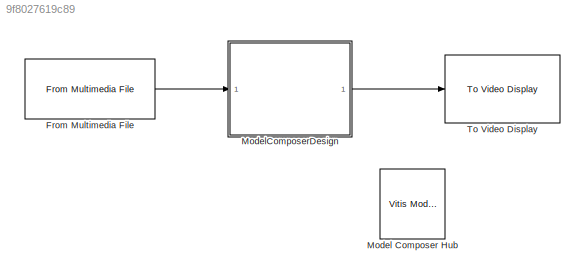
MODEL slx_9f8027619c89
KIND model
CONFIG AbsTol = auto
CONFIG EnableMultiTasking = on
CONFIG FixedStep = auto
CONFIG MaxStep = auto
CONFIG MinStep = auto
CONFIG RelTol = 1e-3
CONFIG SampleTimeConstraint = Unconstrained
CONFIG SolverName = VariableStepAuto
CONFIG StartTime = 0.0
CONFIG StopTime = 0
BLOCK [Reference] From Multimedia File  REF=dspvision/From Multimedia File
  SourceBlock = dspvision/From Multimedia File
  SourceType = From Multimedia File
BLOCK [Reference] Model Composer Hub  REF=vmcUtilities/Vitis Model Composer Hub
  Description = Performs multiplication
  SourceBlock = vmcUtilities/Vitis Model Composer Hub
  SourceType = VMC Hub
  Tag = genX
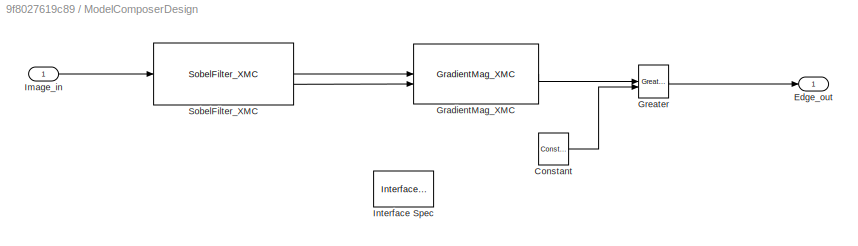
BLOCK [SubSystem] ModelComposerDesign
  ShowPortLabels = none
BLOCK [Reference] ModelComposerDesign/Constant  REF=hlsBasic/Constant
  Description = Performs multiplication
  SourceBlock = hlsBasic/Constant
  SourceType = Constant
BLOCK [Outport] ModelComposerDesign/Edge_out
BLOCK [Reference] ModelComposerDesign/GradientMag_XMC  REF=Sobeledge_lib/GradientMag_XMC
  SourceBlock = Sobeledge_lib/GradientMag_XMC
  SourceType = Import Function
BLOCK [Reference] ModelComposerDesign/Greater  REF=hlsBasic/Greater
  Description = Performs multiplication
  SourceBlock = hlsBasic/Greater
  SourceType = Greater
BLOCK [Inport] ModelComposerDesign/Image_in
BLOCK [Reference] ModelComposerDesign/Interface Spec  REF=hlsUtilities/Interface Spec
  SourceBlock = hlsUtilities/Interface Spec
  SourceType = Interface Specification
BLOCK [Reference] ModelComposerDesign/SobelFilter_XMC  REF=Sobeledge_lib/SobelFilter_XMC
  SourceBlock = Sobeledge_lib/SobelFilter_XMC
  SourceType = Import Function
BLOCK [Reference] To Video Display  REF=visionsinks/To Video Display
  SourceBlock = visionsinks/To Video Display
  SourceType = To Video Display
LINE From Multimedia File:1 -> ModelComposerDesign:1
LINE ModelComposerDesign/Constant:1 -> ModelComposerDesign/Greater:2
LINE ModelComposerDesign/GradientMag_XMC:1 -> ModelComposerDesign/Greater:1
LINE ModelComposerDesign/Greater:1 -> ModelComposerDesign/Edge_out:1
LINE ModelComposerDesign/Image_in:1 -> ModelComposerDesign/SobelFilter_XMC:1
LINE ModelComposerDesign/SobelFilter_XMC:1 -> ModelComposerDesign/GradientMag_XMC:1
LINE ModelComposerDesign/SobelFilter_XMC:2 -> ModelComposerDesign/GradientMag_XMC:2
LINE ModelComposerDesign:1 -> To Video Display:1
